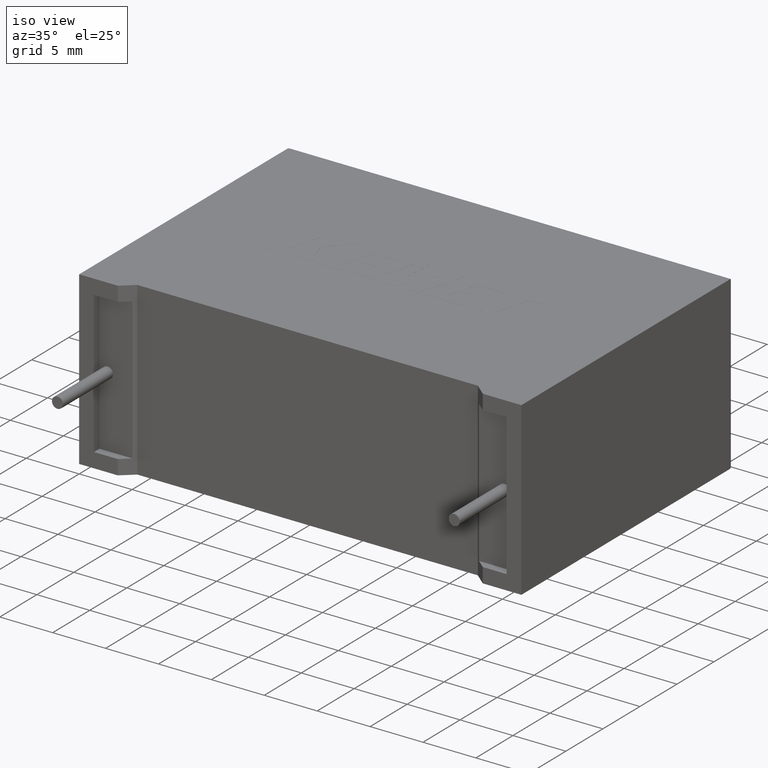
[diagram: clean part render]
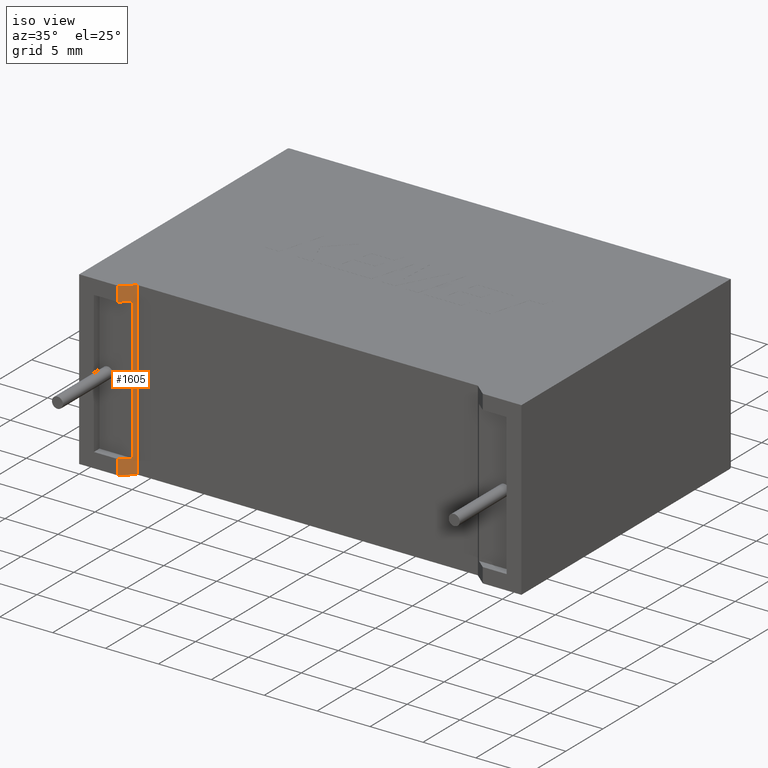
[diagram: same view with one face highlighted and labeled with its STEP entity id]
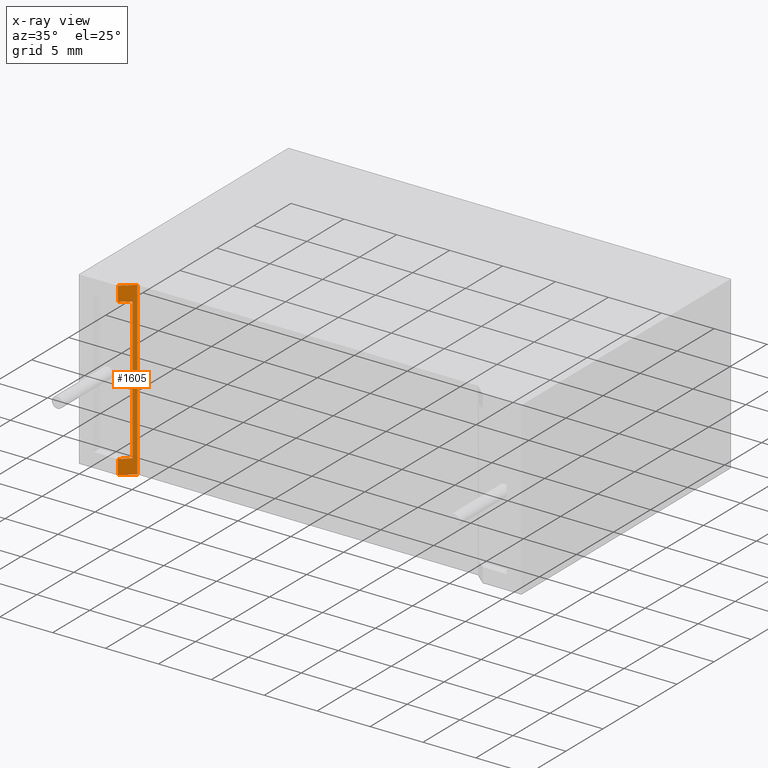
[diagram: x-ray of the same camera — body ghosted, the highlighted face saturated]
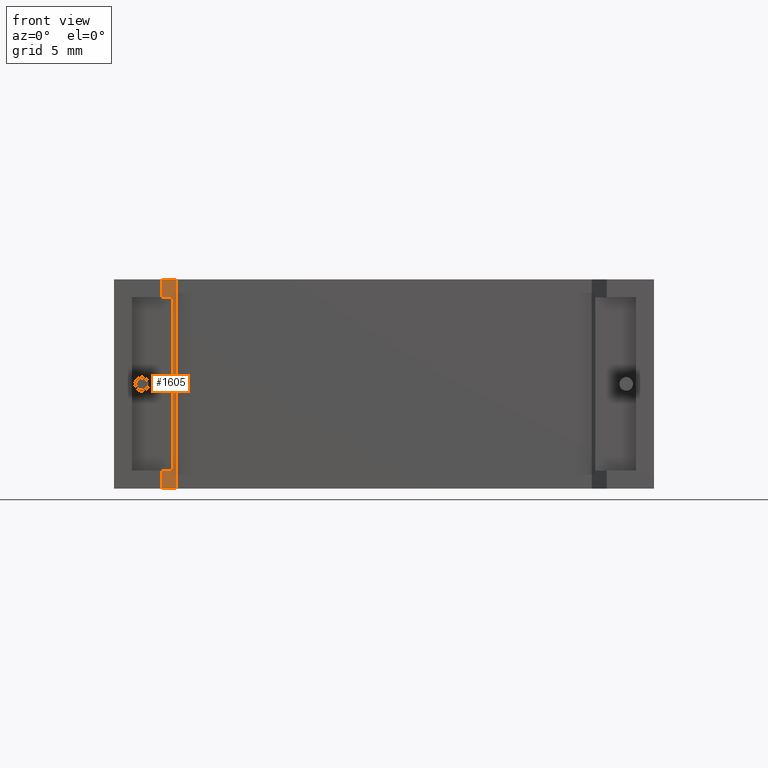
[diagram: same view with one face highlighted and labeled with its STEP entity id]
A machine part, iso view. The second image highlights one B-rep face of the part: STEP entity #1605.
The next image is the same camera in x-ray: the body ghosted, the highlighted face saturated — about 0% of this face is hidden behind the body in this view.
A second angle (front view) of the same face is appended — the face is thin or edge-on in the first view.
In plain terms, the highlighted planar face has unit normal (-0.6474, 0.7621, 0).
Its self-contained STEP definition (entity closure, byte-faithful):
#4 = LINE ( 'NONE', #2132, #89 ) ;
#25 = ORIENTED_EDGE ( 'NONE', *, *, #2622, .T. ) ;
#75 = DIRECTION ( 'NONE',  ( -0.6474425312831697532, 0.7621142753456608965, 0.000000000000000000 ) ) ;
#89 = VECTOR ( 'NONE', #2835, 1000.000000000000000 ) ;
#125 = DIRECTION ( 'NONE',  ( -0.000000000000000000, -0.000000000000000000, 1.000000000000000000 ) ) ;
#154 = ORIENTED_EDGE ( 'NONE', *, *, #594, .F. ) ;
#169 = DIRECTION ( 'NONE',  ( -0.7621142753456608965, -0.6474425312831697532, 0.000000000000000000 ) ) ;
#202 = DIRECTION ( 'NONE',  ( -0.7621142753456608965, -0.6474425312831697532, -0.000000000000000000 ) ) ;
#325 = EDGE_CURVE ( 'NONE', #378, #1050, #1433, .T. ) ;
#355 = FACE_OUTER_BOUND ( 'NONE', #2527, .T. ) ;
#378 = VERTEX_POINT ( 'NONE', #2142 ) ;
#415 = DIRECTION ( 'NONE',  ( 0.000000000000000000, 0.000000000000000000, -1.000000000000000000 ) ) ;
#424 = CARTESIAN_POINT ( 'NONE',  ( 3.649999999999999467, 2.234980408443919708E-16, 1.393333193999999997 ) ) ;
#434 = VECTOR ( 'NONE', #785, 1000.000000000000000 ) ;
#517 = EDGE_CURVE ( 'NONE', #2376, #1182, #1374, .T. ) ;
#545 = ORIENTED_EDGE ( 'NONE', *, *, #940, .F. ) ;
#589 = ORIENTED_EDGE ( 'NONE', *, *, #656, .T. ) ;
#594 = EDGE_CURVE ( 'NONE', #1153, #667, #1282, .T. ) ;
#603 = CARTESIAN_POINT ( 'NONE',  ( 3.649999999999999467, 2.234980408443919708E-16, 14.80666680599999374 ) ) ;
#631 = CARTESIAN_POINT ( 'NONE',  ( 4.532836203819381460, 0.7500000000000000000, 0.000000000000000000 ) ) ;
#656 = EDGE_CURVE ( 'NONE', #2489, #2376, #1294, .T. ) ;
#660 = CARTESIAN_POINT ( 'NONE',  ( 3.649999999999999467, 2.234980408443919708E-16, 0.000000000000000000 ) ) ;
#667 = VERTEX_POINT ( 'NONE', #2683 ) ;
#738 = CARTESIAN_POINT ( 'NONE',  ( 3.649999999999999467, 2.234980408443919708E-16, 0.000000000000000000 ) ) ;
#767 = CARTESIAN_POINT ( 'NONE',  ( 2.709355815073028140, -0.7991098865713951449, 1.393333193999999997 ) ) ;
#785 = DIRECTION ( 'NONE',  ( -0.7621142753456608965, -0.6474425312831697532, -0.000000000000000000 ) ) ;
#826 = VECTOR ( 'NONE', #2394, 1000.000000000000000 ) ;
#940 = EDGE_CURVE ( 'NONE', #2489, #2981, #2844, .T. ) ;
#1050 = VERTEX_POINT ( 'NONE', #603 ) ;
#1103 = CARTESIAN_POINT ( 'NONE',  ( 4.810785999999999341, 0.9861279999999993384, 0.000000000000000000 ) ) ;
#1153 = VERTEX_POINT ( 'NONE', #424 ) ;
#1182 = VERTEX_POINT ( 'NONE', #2888 ) ;
#1186 = ORIENTED_EDGE ( 'NONE', *, *, #517, .T. ) ;
#1270 = VECTOR ( 'NONE', #125, 1000.000000000000000 ) ;
#1282 = LINE ( 'NONE', #767, #826 ) ;
#1294 = LINE ( 'NONE', #1103, #2950 ) ;
#1357 = CARTESIAN_POINT ( 'NONE',  ( 3.649999999999999467, 2.234980408443919708E-16, 0.000000000000000000 ) ) ;
#1374 = LINE ( 'NONE', #2305, #2630 ) ;
#1398 = EDGE_CURVE ( 'NONE', #1050, #1182, #4, .T. ) ;
#1433 = LINE ( 'NONE', #2613, #2732 ) ;
#1605 = ADVANCED_FACE ( 'NONE', ( #355 ), #2415, .F. ) ;
#1673 = DIRECTION ( 'NONE',  ( -0.7621142753456608965, -0.6474425312831697532, -1.016619757209767729E-16 ) ) ;
#1865 = AXIS2_PLACEMENT_3D ( 'NONE', #660, #75, #169 ) ;
#1990 = ORIENTED_EDGE ( 'NONE', *, *, #325, .F. ) ;
#1991 = LINE ( 'NONE', #2709, #1270 ) ;
#2132 = CARTESIAN_POINT ( 'NONE',  ( 3.649999999999999467, 2.234980408443919708E-16, 0.000000000000000000 ) ) ;
#2142 = CARTESIAN_POINT ( 'NONE',  ( 4.532836203819381460, 0.7500000000000000000, 14.80666680599999907 ) ) ;
#2175 = ORIENTED_EDGE ( 'NONE', *, *, #1398, .F. ) ;
#2194 = EDGE_CURVE ( 'NONE', #2981, #1153, #1991, .T. ) ;
#2305 = CARTESIAN_POINT ( 'NONE',  ( 3.649999999999999467, 2.234980408443919708E-16, 16.19999999999999929 ) ) ;
#2376 = VERTEX_POINT ( 'NONE', #2881 ) ;
#2394 = DIRECTION ( 'NONE',  ( 0.7621142753456608965, 0.6474425312831697532, 0.000000000000000000 ) ) ;
#2415 = PLANE ( 'NONE',  #1865 ) ;
#2489 = VERTEX_POINT ( 'NONE', #2706 ) ;
#2527 = EDGE_LOOP ( 'NONE', ( #25, #154, #2917, #545, #589, #1186, #2175, #1990 ) ) ;
#2613 = CARTESIAN_POINT ( 'NONE',  ( 25.36900879791685881, 18.45105188025368292, 14.80666680599999729 ) ) ;
#2622 = EDGE_CURVE ( 'NONE', #378, #667, #2991, .T. ) ;
#2630 = VECTOR ( 'NONE', #202, 1000.000000000000000 ) ;
#2683 = CARTESIAN_POINT ( 'NONE',  ( 4.532836203819381460, 0.7500000000000000000, 1.393333193999999997 ) ) ;
#2706 = CARTESIAN_POINT ( 'NONE',  ( 4.810785999999999341, 0.9861279999999993384, 0.000000000000000000 ) ) ;
#2709 = CARTESIAN_POINT ( 'NONE',  ( 3.649999999999999467, 2.234980408443919708E-16, 0.000000000000000000 ) ) ;
#2732 = VECTOR ( 'NONE', #1673, 1000.000000000000000 ) ;
#2744 = VECTOR ( 'NONE', #415, 1000.000000000000000 ) ;
#2749 = DIRECTION ( 'NONE',  ( -0.000000000000000000, -0.000000000000000000, 1.000000000000000000 ) ) ;
#2835 = DIRECTION ( 'NONE',  ( -0.000000000000000000, -0.000000000000000000, 1.000000000000000000 ) ) ;
#2844 = LINE ( 'NONE', #738, #434 ) ;
#2881 = CARTESIAN_POINT ( 'NONE',  ( 4.810785999999999341, 0.9861279999999993384, 16.19999999999999929 ) ) ;
#2888 = CARTESIAN_POINT ( 'NONE',  ( 3.649999999999999467, 2.234980408443919708E-16, 16.19999999999999929 ) ) ;
#2917 = ORIENTED_EDGE ( 'NONE', *, *, #2194, .F. ) ;
#2950 = VECTOR ( 'NONE', #2749, 1000.000000000000000 ) ;
#2981 = VERTEX_POINT ( 'NONE', #1357 ) ;
#2991 = LINE ( 'NONE', #631, #2744 ) ;